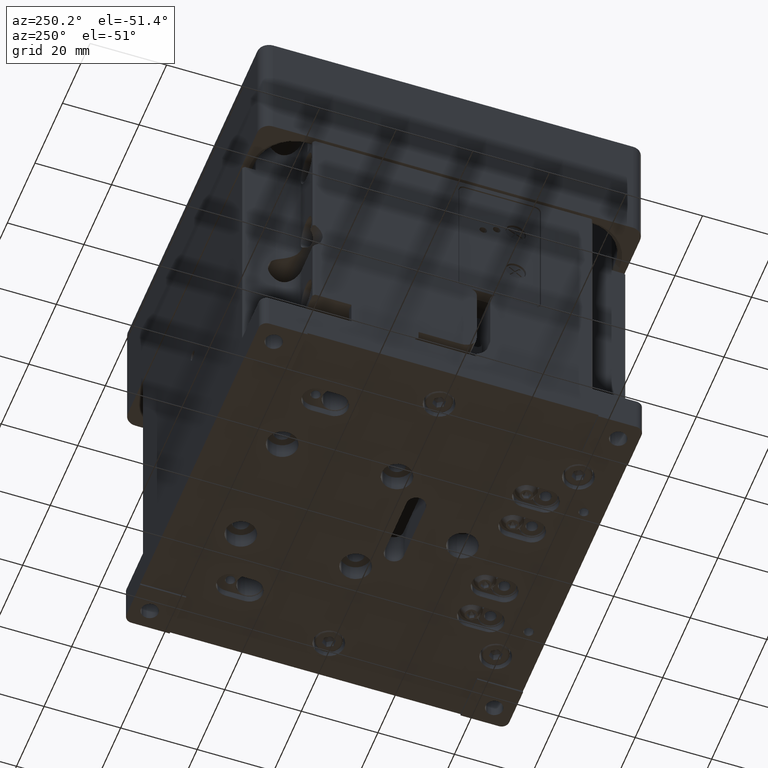
[diagram: clean part render]
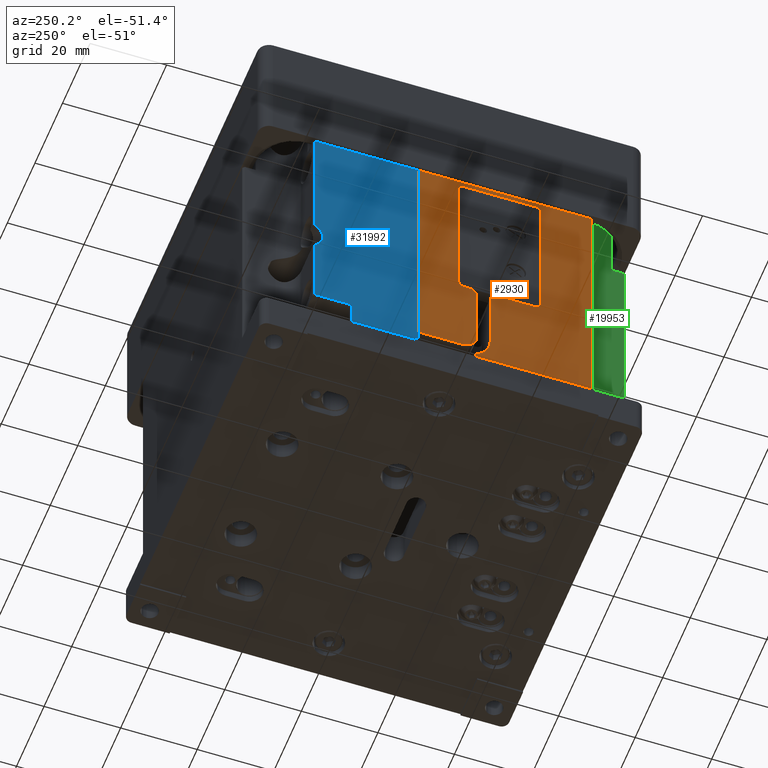
[diagram: same view with three faces highlighted in distinct colors, each labeled with its STEP entity id]
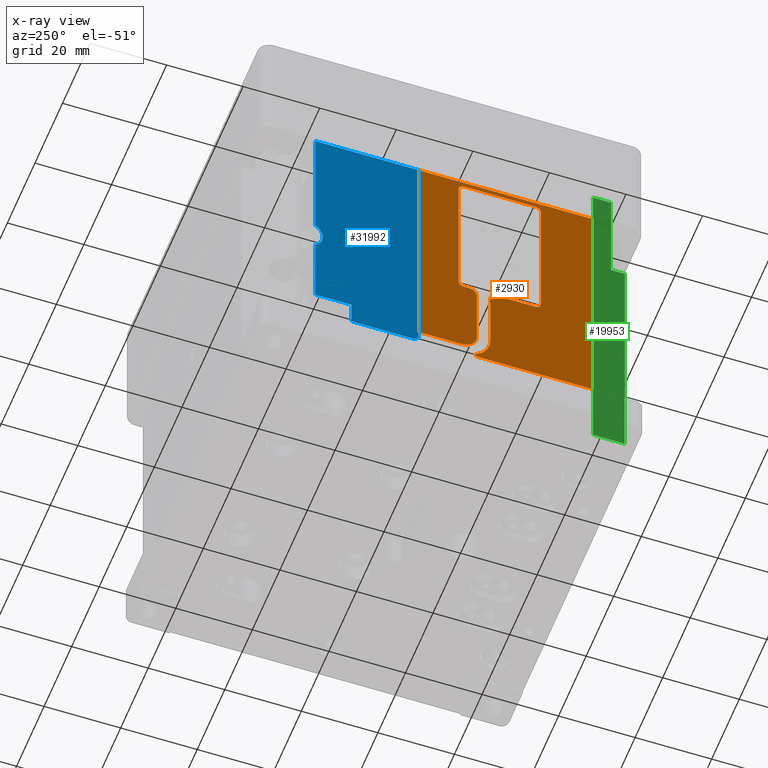
[diagram: x-ray of the same camera — body ghosted, the three highlighted faces saturated]
A machine part, auxiliary view with three faces highlighted in distinct colors.
The next image is the same camera in x-ray (body ghosted, the three faces saturated) — at least one of them is partly hidden behind the body in this view.
Their STEP definitions:

[orange] entity #2930 — the highlighted planar face has unit normal (-1, -0, 0).
#4 = DIRECTION ( 'NONE',  ( -1.000000000000000000, -1.416100796715760863E-16, -0.000000000000000000 ) ) ;
#45 = EDGE_CURVE ( 'NONE', #339, #24981, #39012, .T. ) ;
#223 = PLANE ( 'NONE',  #24922 ) ;
#339 = VERTEX_POINT ( 'NONE', #1372 ) ;
#1049 = CARTESIAN_POINT ( 'NONE',  ( -49.99999999999999289, -21.50000000000000711, 64.04999999999999716 ) ) ;
#1053 = DIRECTION ( 'NONE',  ( 1.387778780781445922E-16, -1.000000000000000000, 0.000000000000000000 ) ) ;
#1372 = CARTESIAN_POINT ( 'NONE',  ( -49.99999999999999289, -1.500000000000004441, 64.04999999999999716 ) ) ;
#1492 = DIRECTION ( 'NONE',  ( -1.387778780781445922E-16, 1.000000000000000000, -0.000000000000000000 ) ) ;
#1855 = EDGE_CURVE ( 'NONE', #21374, #27427, #9730, .T. ) ;
#1878 = AXIS2_PLACEMENT_3D ( 'NONE', #1049, #15969, #20370 ) ;
#2410 = ORIENTED_EDGE ( 'NONE', *, *, #35739, .T. ) ;
#2614 = CARTESIAN_POINT ( 'NONE',  ( -49.99999999999999289, -3.000000000000005329, 26.14999999999999503 ) ) ;
#2930 = ADVANCED_FACE ( 'NONE', ( #44766 ), #223, .T. ) ;
#3459 = DIRECTION ( 'NONE',  ( 0.000000000000000000, 0.000000000000000000, 1.000000000000000000 ) ) ;
#3972 = ORIENTED_EDGE ( 'NONE', *, *, #5535, .T. ) ;
#4757 = CARTESIAN_POINT ( 'NONE',  ( -49.99999999999999289, -3.000000000000005329, 27.64999999999999858 ) ) ;
#4885 = DIRECTION ( 'NONE',  ( -1.000000000000000000, -1.416100796715760863E-16, 0.000000000000000000 ) ) ;
#4907 = CARTESIAN_POINT ( 'NONE',  ( -49.99999999999999289, -11.75000000000000533, 24.14999999999999858 ) ) ;
#5174 = CARTESIAN_POINT ( 'NONE',  ( -50.00000000000000000, 50.00000000000000000, 67.00000000000000000 ) ) ;
#5234 = AXIS2_PLACEMENT_3D ( 'NONE', #28674, #9587, #35788 ) ;
#5535 = EDGE_CURVE ( 'NONE', #11016, #19205, #8828, .T. ) ;
#6062 = VECTOR ( 'NONE', #15440, 1000.000000000000000 ) ;
#7165 = VERTEX_POINT ( 'NONE', #21562 ) ;
#7786 = AXIS2_PLACEMENT_3D ( 'NONE', #34721, #45977, #30557 ) ;
#7936 = VERTEX_POINT ( 'NONE', #39298 ) ;
#8111 = ORIENTED_EDGE ( 'NONE', *, *, #32195, .T. ) ;
#8300 = VECTOR ( 'NONE', #20724, 1000.000000000000000 ) ;
#8828 = LINE ( 'NONE', #5174, #45676 ) ;
#8936 = EDGE_CURVE ( 'NONE', #13107, #7165, #13993, .T. ) ;
#8971 = EDGE_CURVE ( 'NONE', #19721, #339, #35787, .T. ) ;
#9422 = AXIS2_PLACEMENT_3D ( 'NONE', #33537, #4, #30331 ) ;
#9587 = DIRECTION ( 'NONE',  ( 1.000000000000000000, 1.387778780781445922E-16, 0.000000000000000000 ) ) ;
#9710 = DIRECTION ( 'NONE',  ( 0.000000000000000000, -1.000000000000000000, 0.000000000000000000 ) ) ;
#9730 = LINE ( 'NONE', #17820, #14230 ) ;
#10050 = EDGE_CURVE ( 'NONE', #24981, #30730, #19635, .T. ) ;
#10242 = ORIENTED_EDGE ( 'NONE', *, *, #20619, .T. ) ;
#10451 = EDGE_CURVE ( 'NONE', #7165, #21374, #32221, .T. ) ;
#10540 = AXIS2_PLACEMENT_3D ( 'NONE', #17794, #43245, #9710 ) ;
#10936 = EDGE_CURVE ( 'NONE', #27997, #17078, #38497, .T. ) ;
#11005 = DIRECTION ( 'NONE',  ( 0.000000000000000000, 0.000000000000000000, 1.000000000000000000 ) ) ;
#11016 = VERTEX_POINT ( 'NONE', #38858 ) ;
#11274 = LINE ( 'NONE', #41149, #39171 ) ;
#11343 = ORIENTED_EDGE ( 'NONE', *, *, #19523, .T. ) ;
#11415 = CARTESIAN_POINT ( 'NONE',  ( -49.99999999999998579, -36.19999999999999574, -9.500000000000000000 ) ) ;
#11735 = LINE ( 'NONE', #18608, #32021 ) ;
#12422 = DIRECTION ( 'NONE',  ( -1.000000000000000000, -1.416100796715760863E-16, -0.000000000000000000 ) ) ;
#12523 = LINE ( 'NONE', #35293, #38483 ) ;
#12803 = DIRECTION ( 'NONE',  ( 1.000000000000000000, 1.387778780781445676E-16, -0.000000000000000000 ) ) ;
#13065 = CARTESIAN_POINT ( 'NONE',  ( -49.99999999999999289, -9.750000000000007105, 24.14999999999999858 ) ) ;
#13107 = VERTEX_POINT ( 'NONE', #24909 ) ;
#13491 = CARTESIAN_POINT ( 'NONE',  ( -49.99999999999999289, -1.500000000000008216, -9.500000000000000000 ) ) ;
#13795 = VECTOR ( 'NONE', #45623, 1000.000000000000000 ) ;
#13993 = LINE ( 'NONE', #28906, #35271 ) ;
#14024 = EDGE_CURVE ( 'NONE', #19205, #45210, #12523, .T. ) ;
#14072 = VERTEX_POINT ( 'NONE', #18387 ) ;
#14230 = VECTOR ( 'NONE', #28818, 1000.000000000000000 ) ;
#14681 = DIRECTION ( 'NONE',  ( -1.000000000000000000, -1.387778780781445922E-16, 0.000000000000000000 ) ) ;
#15358 = AXIS2_PLACEMENT_3D ( 'NONE', #4757, #12803, #46610 ) ;
#15440 = DIRECTION ( 'NONE',  ( 0.000000000000000000, 1.000000000000000000, 0.000000000000000000 ) ) ;
#15969 = DIRECTION ( 'NONE',  ( 1.000000000000000000, 1.387778780781445922E-16, 0.000000000000000000 ) ) ;
#16185 = ORIENTED_EDGE ( 'NONE', *, *, #45, .T. ) ;
#17078 = VERTEX_POINT ( 'NONE', #22520 ) ;
#17530 = CARTESIAN_POINT ( 'NONE',  ( -49.99999999999999289, -23.00000000000000711, 27.64999999999999503 ) ) ;
#17794 = CARTESIAN_POINT ( 'NONE',  ( -49.99999999999999289, -2.000000000000005329, 7.500000000000000000 ) ) ;
#17820 = CARTESIAN_POINT ( 'NONE',  ( -49.99999999999999289, -9.750000000000008882, -9.500000000000000000 ) ) ;
#18071 = ORIENTED_EDGE ( 'NONE', *, *, #25706, .T. ) ;
#18387 = CARTESIAN_POINT ( 'NONE',  ( -49.99999999999999289, -4.250000000000005329, 26.14999999999999858 ) ) ;
#18608 = CARTESIAN_POINT ( 'NONE',  ( -49.99999999999998579, 0.000000000000000000, 0.000000000000000000 ) ) ;
#19205 = VERTEX_POINT ( 'NONE', #38695 ) ;
#19270 = CIRCLE ( 'NONE', #15358, 1.500000000000000444 ) ;
#19340 = DIRECTION ( 'NONE',  ( -0.000000000000000000, -0.000000000000000000, -1.000000000000000000 ) ) ;
#19523 = EDGE_CURVE ( 'NONE', #44544, #43776, #30499, .T. ) ;
#19635 = LINE ( 'NONE', #27452, #26879 ) ;
#19721 = VERTEX_POINT ( 'NONE', #31292 ) ;
#20065 = CIRCLE ( 'NONE', #5234, 1.500000000000001332 ) ;
#20304 = EDGE_CURVE ( 'NONE', #17078, #7936, #24399, .T. ) ;
#20370 = DIRECTION ( 'NONE',  ( 0.000000000000000000, 1.000000000000000000, 0.000000000000000000 ) ) ;
#20420 = EDGE_CURVE ( 'NONE', #45210, #27997, #26775, .T. ) ;
#20619 = EDGE_CURVE ( 'NONE', #45821, #19721, #19270, .T. ) ;
#20724 = DIRECTION ( 'NONE',  ( 0.000000000000000000, 0.000000000000000000, 1.000000000000000000 ) ) ;
#21374 = VERTEX_POINT ( 'NONE', #13065 ) ;
#21562 = CARTESIAN_POINT ( 'NONE',  ( -49.99999999999999289, -11.75000000000000533, 26.14999999999999503 ) ) ;
#22065 = LINE ( 'NONE', #40892, #6062 ) ;
#22520 = CARTESIAN_POINT ( 'NONE',  ( -49.99999999999999289, -6.250000000000005329, 7.500000000000000000 ) ) ;
#22713 = ORIENTED_EDGE ( 'NONE', *, *, #28458, .T. ) ;
#23257 = CARTESIAN_POINT ( 'NONE',  ( -50.00000000000000000, 9.000000000000035527, 3.250000000000001332 ) ) ;
#24399 = LINE ( 'NONE', #39306, #8300 ) ;
#24425 = EDGE_CURVE ( 'NONE', #30730, #40851, #44086, .T. ) ;
#24582 = CARTESIAN_POINT ( 'NONE',  ( -49.99999999999999289, -21.50000000000000711, 65.54999999999999716 ) ) ;
#24909 = CARTESIAN_POINT ( 'NONE',  ( -49.99999999999999289, -21.50000000000000355, 26.14999999999999147 ) ) ;
#24922 = AXIS2_PLACEMENT_3D ( 'NONE', #29596, #14681, #30544 ) ;
#24981 = VERTEX_POINT ( 'NONE', #42844 ) ;
#25017 = DIRECTION ( 'NONE',  ( -1.387778780781445922E-16, 1.000000000000000000, -0.000000000000000000 ) ) ;
#25706 = EDGE_CURVE ( 'NONE', #7936, #14072, #38287, .T. ) ;
#26775 = LINE ( 'NONE', #37562, #13795 ) ;
#26879 = VECTOR ( 'NONE', #1053, 1000.000000000000000 ) ;
#26890 = DIRECTION ( 'NONE',  ( 0.000000000000000000, -1.000000000000000000, 0.000000000000000000 ) ) ;
#26918 = DIRECTION ( 'NONE',  ( 0.000000000000000000, 1.000000000000000000, 0.000000000000000000 ) ) ;
#27122 = ORIENTED_EDGE ( 'NONE', *, *, #10451, .T. ) ;
#27316 = ORIENTED_EDGE ( 'NONE', *, *, #42020, .T. ) ;
#27349 = ORIENTED_EDGE ( 'NONE', *, *, #45208, .F. ) ;
#27427 = VERTEX_POINT ( 'NONE', #41081 ) ;
#27447 = DIRECTION ( 'NONE',  ( -0.000000000000000000, -0.000000000000000000, -1.000000000000000000 ) ) ;
#27452 = CARTESIAN_POINT ( 'NONE',  ( -50.00000000000000000, 50.00000000000000000, 65.54999999999999716 ) ) ;
#27997 = VERTEX_POINT ( 'NONE', #39758 ) ;
#28293 = ORIENTED_EDGE ( 'NONE', *, *, #20420, .T. ) ;
#28458 = EDGE_CURVE ( 'NONE', #14072, #45821, #22065, .T. ) ;
#28674 = CARTESIAN_POINT ( 'NONE',  ( -49.99999999999999289, -21.50000000000000000, 27.64999999999999858 ) ) ;
#28818 = DIRECTION ( 'NONE',  ( -0.000000000000000000, -0.000000000000000000, -1.000000000000000000 ) ) ;
#28894 = ORIENTED_EDGE ( 'NONE', *, *, #46840, .T. ) ;
#28906 = CARTESIAN_POINT ( 'NONE',  ( -50.00000000000000000, 50.00000000000000000, 26.14999999999999147 ) ) ;
#29002 = VERTEX_POINT ( 'NONE', #17530 ) ;
#29596 = CARTESIAN_POINT ( 'NONE',  ( -50.00000000000000000, 50.00000000000000000, -9.500000000000000000 ) ) ;
#29788 = VECTOR ( 'NONE', #3459, 1000.000000000000000 ) ;
#30070 = LINE ( 'NONE', #11415, #38111 ) ;
#30094 = CARTESIAN_POINT ( 'NONE',  ( -49.99999999999999289, -4.250000000000004441, 24.14999999999999858 ) ) ;
#30331 = DIRECTION ( 'NONE',  ( 0.000000000000000000, -1.000000000000000000, 0.000000000000000000 ) ) ;
#30499 = CIRCLE ( 'NONE', #9422, 0.4999999999999995559 ) ;
#30544 = DIRECTION ( 'NONE',  ( 1.387778780781445922E-16, -1.000000000000000000, 0.000000000000000000 ) ) ;
#30557 = DIRECTION ( 'NONE',  ( 0.000000000000000000, -1.000000000000000000, 0.000000000000000000 ) ) ;
#30637 = AXIS2_PLACEMENT_3D ( 'NONE', #4907, #46006, #26918 ) ;
#30730 = VERTEX_POINT ( 'NONE', #24582 ) ;
#31292 = CARTESIAN_POINT ( 'NONE',  ( -49.99999999999999289, -1.500000000000006439, 27.64999999999999503 ) ) ;
#32021 = VECTOR ( 'NONE', #41845, 1000.000000000000000 ) ;
#32195 = EDGE_CURVE ( 'NONE', #27427, #44544, #37126, .T. ) ;
#32221 = CIRCLE ( 'NONE', #30637, 2.000000000000000000 ) ;
#33042 = CARTESIAN_POINT ( 'NONE',  ( -49.99999999999998579, -36.20000000000000284, 0.000000000000000000 ) ) ;
#33537 = CARTESIAN_POINT ( 'NONE',  ( -49.99999999999998579, -6.366062299143253611, 0.5000000000000004441 ) ) ;
#33968 = ORIENTED_EDGE ( 'NONE', *, *, #24425, .T. ) ;
#34233 = DIRECTION ( 'NONE',  ( 0.000000000000000000, -1.000000000000000000, 0.000000000000000000 ) ) ;
#34721 = CARTESIAN_POINT ( 'NONE',  ( -49.99999999999999289, -3.000000000000000444, 64.04999999999999716 ) ) ;
#35271 = VECTOR ( 'NONE', #25017, 1000.000000000000000 ) ;
#35293 = CARTESIAN_POINT ( 'NONE',  ( -50.00000000000000000, 9.000000000000051514, 93.50000000000000000 ) ) ;
#35739 = EDGE_CURVE ( 'NONE', #29002, #13107, #20065, .T. ) ;
#35787 = LINE ( 'NONE', #13491, #29788 ) ;
#35788 = DIRECTION ( 'NONE',  ( 0.000000000000000000, 1.000000000000000000, 0.000000000000000000 ) ) ;
#36036 = ORIENTED_EDGE ( 'NONE', *, *, #8971, .T. ) ;
#36111 = ORIENTED_EDGE ( 'NONE', *, *, #14024, .T. ) ;
#36164 = AXIS2_PLACEMENT_3D ( 'NONE', #45959, #12422, #34233 ) ;
#36716 = CARTESIAN_POINT ( 'NONE',  ( -49.99999999999998579, -6.366062299143252723, 0.000000000000000000 ) ) ;
#37126 = CIRCLE ( 'NONE', #10540, 7.750000000000000000 ) ;
#37562 = CARTESIAN_POINT ( 'NONE',  ( -50.00000000000000000, -6.353699843987567148E-15, 3.249999999999999556 ) ) ;
#38111 = VECTOR ( 'NONE', #11005, 1000.000000000000000 ) ;
#38287 = CIRCLE ( 'NONE', #42222, 2.000000000000000000 ) ;
#38483 = VECTOR ( 'NONE', #27447, 1000.000000000000000 ) ;
#38497 = CIRCLE ( 'NONE', #36164, 4.250000000000000000 ) ;
#38695 = CARTESIAN_POINT ( 'NONE',  ( -50.00000000000000000, 9.000000000000017764, 67.00000000000000000 ) ) ;
#38858 = CARTESIAN_POINT ( 'NONE',  ( -49.99999999999998579, -36.19999999999999574, 67.00000000000000000 ) ) ;
#39012 = CIRCLE ( 'NONE', #7786, 1.500000000000000000 ) ;
#39171 = VECTOR ( 'NONE', #19340, 1000.000000000000000 ) ;
#39298 = CARTESIAN_POINT ( 'NONE',  ( -49.99999999999999289, -6.250000000000005329, 24.14999999999999858 ) ) ;
#39306 = CARTESIAN_POINT ( 'NONE',  ( -49.99999999999999289, -6.250000000000005329, -9.500000000000000000 ) ) ;
#39758 = CARTESIAN_POINT ( 'NONE',  ( -50.00000000000000000, -2.000000000000006217, 3.249999999999999556 ) ) ;
#40851 = VERTEX_POINT ( 'NONE', #46562 ) ;
#40892 = CARTESIAN_POINT ( 'NONE',  ( -49.99999999999999289, -1.499999999999997113, 26.14999999999999503 ) ) ;
#41081 = CARTESIAN_POINT ( 'NONE',  ( -49.99999999999999289, -9.750000000000008882, 7.500000000000000888 ) ) ;
#41149 = CARTESIAN_POINT ( 'NONE',  ( -49.99999999999999289, -23.00000000000000711, -9.500000000000000000 ) ) ;
#41845 = DIRECTION ( 'NONE',  ( 0.000000000000000000, 1.000000000000000000, 0.000000000000000000 ) ) ;
#41887 = EDGE_LOOP ( 'NONE', ( #22713, #10242, #36036, #16185, #45429, #33968, #28894, #2410, #48236, #27122, #47918, #8111, #11343, #27349, #27316, #3972, #36111, #28293, #47185, #47195, #18071 ) ) ;
#42020 = EDGE_CURVE ( 'NONE', #42038, #11016, #30070, .T. ) ;
#42038 = VERTEX_POINT ( 'NONE', #33042 ) ;
#42222 = AXIS2_PLACEMENT_3D ( 'NONE', #30094, #4885, #26890 ) ;
#42439 = CARTESIAN_POINT ( 'NONE',  ( -49.99999999999998579, -6.101452462831542078, 0.9242424242424239766 ) ) ;
#42844 = CARTESIAN_POINT ( 'NONE',  ( -49.99999999999999289, -3.000000000000000000, 65.54999999999999716 ) ) ;
#43245 = DIRECTION ( 'NONE',  ( 1.000000000000000000, 1.416100796715760863E-16, 0.000000000000000000 ) ) ;
#43776 = VERTEX_POINT ( 'NONE', #36716 ) ;
#44086 = CIRCLE ( 'NONE', #1878, 1.500000000000001332 ) ;
#44544 = VERTEX_POINT ( 'NONE', #42439 ) ;
#44766 = FACE_OUTER_BOUND ( 'NONE', #41887, .T. ) ;
#45208 = EDGE_CURVE ( 'NONE', #42038, #43776, #11735, .T. ) ;
#45210 = VERTEX_POINT ( 'NONE', #23257 ) ;
#45429 = ORIENTED_EDGE ( 'NONE', *, *, #10050, .T. ) ;
#45623 = DIRECTION ( 'NONE',  ( 0.000000000000000000, -1.000000000000000000, -3.942553354492743901E-17 ) ) ;
#45676 = VECTOR ( 'NONE', #1492, 1000.000000000000000 ) ;
#45821 = VERTEX_POINT ( 'NONE', #2614 ) ;
#45959 = CARTESIAN_POINT ( 'NONE',  ( -49.99999999999999289, -2.000000000000006217, 7.500000000000000000 ) ) ;
#45977 = DIRECTION ( 'NONE',  ( 1.000000000000000000, 1.387778780781445676E-16, -0.000000000000000000 ) ) ;
#46006 = DIRECTION ( 'NONE',  ( -1.000000000000000000, -1.416100796715760863E-16, -0.000000000000000000 ) ) ;
#46562 = CARTESIAN_POINT ( 'NONE',  ( -49.99999999999999289, -23.00000000000000355, 64.04999999999999716 ) ) ;
#46610 = DIRECTION ( 'NONE',  ( 0.000000000000000000, -1.000000000000000000, 0.000000000000000000 ) ) ;
#46840 = EDGE_CURVE ( 'NONE', #40851, #29002, #11274, .T. ) ;
#47185 = ORIENTED_EDGE ( 'NONE', *, *, #10936, .T. ) ;
#47195 = ORIENTED_EDGE ( 'NONE', *, *, #20304, .T. ) ;
#47918 = ORIENTED_EDGE ( 'NONE', *, *, #1855, .T. ) ;
#48236 = ORIENTED_EDGE ( 'NONE', *, *, #8936, .T. ) ;

[blue] entity #31992 — the highlighted planar face has unit normal (1, 0, 0).
#67 = ORIENTED_EDGE ( 'NONE', *, *, #7528, .F. ) ;
#1150 = CARTESIAN_POINT ( 'NONE',  ( -50.00000000000000000, 8.999999999999980460, 1.000000000000000888 ) ) ;
#2186 = CARTESIAN_POINT ( 'NONE',  ( -50.00000000000000711, 36.00000000000002842, 6.499999999999976907 ) ) ;
#2405 = LINE ( 'NONE', #20516, #9488 ) ;
#2622 = ORIENTED_EDGE ( 'NONE', *, *, #31998, .F. ) ;
#2938 = VERTEX_POINT ( 'NONE', #33747 ) ;
#3196 = ORIENTED_EDGE ( 'NONE', *, *, #28544, .T. ) ;
#3398 = LINE ( 'NONE', #44990, #30715 ) ;
#4355 = FACE_OUTER_BOUND ( 'NONE', #29313, .T. ) ;
#4664 = CARTESIAN_POINT ( 'NONE',  ( -50.00000000000000000, 8.999999999999978684, 137.9435699807652043 ) ) ;
#4815 = CARTESIAN_POINT ( 'NONE',  ( -50.00000000000000000, 26.50000000000000355, 0.000000000000000000 ) ) ;
#4900 = LINE ( 'NONE', #19812, #25117 ) ;
#7235 = VERTEX_POINT ( 'NONE', #22989 ) ;
#7528 = EDGE_CURVE ( 'NONE', #11606, #2938, #2405, .T. ) ;
#7944 = EDGE_CURVE ( 'NONE', #38551, #44821, #21438, .T. ) ;
#8335 = LINE ( 'NONE', #4664, #46682 ) ;
#8505 = DIRECTION ( 'NONE',  ( 0.000000000000000000, 0.7071067811865469066, -0.7071067811865482389 ) ) ;
#9377 = VERTEX_POINT ( 'NONE', #36451 ) ;
#9488 = VECTOR ( 'NONE', #17329, 1000.000000000000000 ) ;
#10736 = VECTOR ( 'NONE', #12241, 1000.000000000000000 ) ;
#11256 = EDGE_CURVE ( 'NONE', #44821, #11606, #29177, .T. ) ;
#11556 = VECTOR ( 'NONE', #8505, 999.9999999999998863 ) ;
#11606 = VERTEX_POINT ( 'NONE', #46640 ) ;
#12241 = DIRECTION ( 'NONE',  ( -0.000000000000000000, -1.000000000000000000, 0.000000000000000000 ) ) ;
#12882 = LINE ( 'NONE', #1150, #11556 ) ;
#12961 = DIRECTION ( 'NONE',  ( -0.000000000000000000, 1.000000000000000000, 0.000000000000000000 ) ) ;
#13854 = DIRECTION ( 'NONE',  ( -0.000000000000000000, -0.000000000000000000, 1.000000000000000000 ) ) ;
#13959 = ORIENTED_EDGE ( 'NONE', *, *, #11256, .F. ) ;
#16385 = DIRECTION ( 'NONE',  ( 0.000000000000000000, 0.000000000000000000, 1.000000000000000000 ) ) ;
#17116 = CARTESIAN_POINT ( 'NONE',  ( -50.00000000000000000, 8.999999999999984013, 0.9999999999999850120 ) ) ;
#17329 = DIRECTION ( 'NONE',  ( -0.000000000000000000, -0.000000000000000000, 1.000000000000000000 ) ) ;
#19279 = DIRECTION ( 'NONE',  ( 0.000000000000000000, 0.000000000000000000, -1.000000000000000000 ) ) ;
#19812 = CARTESIAN_POINT ( 'NONE',  ( -50.00000000000000000, 8.999999999999978684, 0.000000000000000000 ) ) ;
#19813 = LINE ( 'NONE', #46494, #10736 ) ;
#20516 = CARTESIAN_POINT ( 'NONE',  ( -50.00000000000000000, 36.00000000000002132, 137.9435699807652043 ) ) ;
#21438 = LINE ( 'NONE', #39554, #28278 ) ;
#21765 = DIRECTION ( 'NONE',  ( 0.000000000000000000, 1.000000000000000000, 0.000000000000000000 ) ) ;
#22201 = DIRECTION ( 'NONE',  ( -1.000000000000000000, -0.000000000000000000, -0.000000000000000000 ) ) ;
#22456 = DIRECTION ( 'NONE',  ( 0.000000000000000000, 0.000000000000000000, 1.000000000000000000 ) ) ;
#22696 = ORIENTED_EDGE ( 'NONE', *, *, #7944, .F. ) ;
#22989 = CARTESIAN_POINT ( 'NONE',  ( -50.00000000000000000, 9.999999999999980460, -6.505213034913026604E-16 ) ) ;
#23955 = EDGE_CURVE ( 'NONE', #9377, #38551, #3398, .T. ) ;
#24905 = EDGE_CURVE ( 'NONE', #7235, #43953, #4900, .T. ) ;
#25117 = VECTOR ( 'NONE', #12961, 1000.000000000000000 ) ;
#25776 = VERTEX_POINT ( 'NONE', #45505 ) ;
#27094 = DIRECTION ( 'NONE',  ( 1.000000000000000000, 0.000000000000000000, 0.000000000000000000 ) ) ;
#28278 = VECTOR ( 'NONE', #13854, 1000.000000000000000 ) ;
#28544 = EDGE_CURVE ( 'NONE', #34810, #25776, #8335, .T. ) ;
#28589 = ORIENTED_EDGE ( 'NONE', *, *, #24905, .F. ) ;
#28598 = EDGE_CURVE ( 'NONE', #2938, #25776, #19813, .T. ) ;
#29177 = CIRCLE ( 'NONE', #38534, 4.749999999999990230 ) ;
#29313 = EDGE_LOOP ( 'NONE', ( #42553, #28589, #2622, #3196, #38447, #67, #13959, #22696, #39219 ) ) ;
#29509 = AXIS2_PLACEMENT_3D ( 'NONE', #42774, #27094, #19279 ) ;
#30715 = VECTOR ( 'NONE', #21765, 1000.000000000000000 ) ;
#31992 = ADVANCED_FACE ( 'NONE', ( #4355 ), #34215, .F. ) ;
#31998 = EDGE_CURVE ( 'NONE', #34810, #7235, #12882, .T. ) ;
#33747 = CARTESIAN_POINT ( 'NONE',  ( -50.00000000000000711, 36.00000000000002132, 66.99999999999998579 ) ) ;
#34215 = PLANE ( 'NONE',  #29509 ) ;
#34315 = CARTESIAN_POINT ( 'NONE',  ( -50.00000000000000000, 36.00000000000002842, 26.12701665379258742 ) ) ;
#34810 = VERTEX_POINT ( 'NONE', #17116 ) ;
#35602 = CARTESIAN_POINT ( 'NONE',  ( -50.00000000000000000, 26.50000000000000355, 137.9435699807652043 ) ) ;
#36451 = CARTESIAN_POINT ( 'NONE',  ( -50.00000000000000711, 26.50000000000000711, 6.500000000000002665 ) ) ;
#38447 = ORIENTED_EDGE ( 'NONE', *, *, #28598, .F. ) ;
#38534 = AXIS2_PLACEMENT_3D ( 'NONE', #44707, #22201, #22456 ) ;
#38551 = VERTEX_POINT ( 'NONE', #2186 ) ;
#39219 = ORIENTED_EDGE ( 'NONE', *, *, #23955, .F. ) ;
#39554 = CARTESIAN_POINT ( 'NONE',  ( -50.00000000000000000, 36.00000000000002842, 137.9435699807652043 ) ) ;
#40447 = EDGE_CURVE ( 'NONE', #43953, #9377, #46361, .T. ) ;
#41902 = VECTOR ( 'NONE', #42959, 1000.000000000000000 ) ;
#42553 = ORIENTED_EDGE ( 'NONE', *, *, #40447, .F. ) ;
#42774 = CARTESIAN_POINT ( 'NONE',  ( -50.00000000000000000, 8.999999999999978684, 137.9435699807652043 ) ) ;
#42959 = DIRECTION ( 'NONE',  ( -0.000000000000000000, -0.000000000000000000, 1.000000000000000000 ) ) ;
#43953 = VERTEX_POINT ( 'NONE', #4815 ) ;
#44707 = CARTESIAN_POINT ( 'NONE',  ( -50.00000000000000000, 38.75000000000000711, 29.99999999999999289 ) ) ;
#44821 = VERTEX_POINT ( 'NONE', #34315 ) ;
#44990 = CARTESIAN_POINT ( 'NONE',  ( -50.00000000000000711, 0.000000000000000000, 6.500000000000002665 ) ) ;
#45505 = CARTESIAN_POINT ( 'NONE',  ( -50.00000000000000000, 8.999999999999980460, 67.00000000000000000 ) ) ;
#46361 = LINE ( 'NONE', #35602, #41902 ) ;
#46494 = CARTESIAN_POINT ( 'NONE',  ( -50.00000000000000711, 0.000000000000000000, 67.00000000000000000 ) ) ;
#46640 = CARTESIAN_POINT ( 'NONE',  ( -50.00000000000000000, 36.00000000000002132, 33.87298334620742679 ) ) ;
#46682 = VECTOR ( 'NONE', #16385, 1000.000000000000000 ) ;

[green] entity #19953 — the highlighted planar face has unit normal (1, 0, 0).
#1054 = CARTESIAN_POINT ( 'NONE',  ( -36.50000000000000000, -49.69999999999998863, 1.734723475976807094E-15 ) ) ;
#2038 = EDGE_LOOP ( 'NONE', ( #39949, #14310, #33756, #33553, #6535, #26253 ) ) ;
#2607 = VECTOR ( 'NONE', #33100, 1000.000000000000000 ) ;
#3639 = DIRECTION ( 'NONE',  ( -0.000000000000000000, 0.000000000000000000, -1.000000000000000000 ) ) ;
#6490 = VECTOR ( 'NONE', #28849, 1000.000000000000000 ) ;
#6535 = ORIENTED_EDGE ( 'NONE', *, *, #23705, .F. ) ;
#7059 = PLANE ( 'NONE',  #8266 ) ;
#7337 = DIRECTION ( 'NONE',  ( 0.000000000000000000, 1.000000000000000000, 0.000000000000000000 ) ) ;
#8266 = AXIS2_PLACEMENT_3D ( 'NONE', #18304, #18548, #33248 ) ;
#10051 = VERTEX_POINT ( 'NONE', #12529 ) ;
#10365 = VERTEX_POINT ( 'NONE', #11289 ) ;
#11289 = CARTESIAN_POINT ( 'NONE',  ( -36.50000000000000000, -46.19999999999998153, 67.00000000000000000 ) ) ;
#11600 = EDGE_CURVE ( 'NONE', #19583, #10051, #28251, .T. ) ;
#12529 = CARTESIAN_POINT ( 'NONE',  ( -36.50000000000000000, -41.50000000000000000, 93.50000000000000000 ) ) ;
#14310 = ORIENTED_EDGE ( 'NONE', *, *, #17067, .F. ) ;
#15105 = CARTESIAN_POINT ( 'NONE',  ( -36.50000000000000000, -49.69999999999998863, 93.50000000000000000 ) ) ;
#15145 = VERTEX_POINT ( 'NONE', #1054 ) ;
#15498 = DIRECTION ( 'NONE',  ( 0.000000000000000000, -1.000000000000000000, -0.000000000000000000 ) ) ;
#16127 = VERTEX_POINT ( 'NONE', #45960 ) ;
#17067 = EDGE_CURVE ( 'NONE', #15145, #19583, #41821, .T. ) ;
#17584 = FACE_OUTER_BOUND ( 'NONE', #2038, .T. ) ;
#17886 = LINE ( 'NONE', #39412, #34056 ) ;
#18304 = CARTESIAN_POINT ( 'NONE',  ( -36.50000000000000000, -36.50000000000000711, 93.50000000000000000 ) ) ;
#18548 = DIRECTION ( 'NONE',  ( 1.000000000000000000, 0.000000000000000000, -0.000000000000000000 ) ) ;
#19567 = VECTOR ( 'NONE', #7337, 1000.000000000000000 ) ;
#19583 = VERTEX_POINT ( 'NONE', #38158 ) ;
#19953 = ADVANCED_FACE ( 'NONE', ( #17584 ), #7059, .F. ) ;
#20540 = CARTESIAN_POINT ( 'NONE',  ( -36.50000000000000000, -46.19999999999998153, 93.50000000000000000 ) ) ;
#20802 = LINE ( 'NONE', #20540, #6490 ) ;
#20850 = DIRECTION ( 'NONE',  ( -0.000000000000000000, -1.000000000000000000, -0.000000000000000000 ) ) ;
#22126 = CARTESIAN_POINT ( 'NONE',  ( -36.50000000000000000, 0.000000000000000000, 93.50000000000000000 ) ) ;
#23705 = EDGE_CURVE ( 'NONE', #16127, #10365, #20802, .T. ) ;
#26027 = LINE ( 'NONE', #22126, #31795 ) ;
#26253 = ORIENTED_EDGE ( 'NONE', *, *, #28150, .F. ) ;
#27773 = CARTESIAN_POINT ( 'NONE',  ( -36.50000000000000000, -41.50000000000000000, 93.50000000000000000 ) ) ;
#28150 = EDGE_CURVE ( 'NONE', #10051, #16127, #26027, .T. ) ;
#28251 = LINE ( 'NONE', #27773, #2607 ) ;
#28849 = DIRECTION ( 'NONE',  ( -0.000000000000000000, 0.000000000000000000, -1.000000000000000000 ) ) ;
#29923 = EDGE_CURVE ( 'NONE', #10365, #43396, #17886, .T. ) ;
#31795 = VECTOR ( 'NONE', #15498, 1000.000000000000000 ) ;
#33100 = DIRECTION ( 'NONE',  ( 0.000000000000000000, -0.000000000000000000, 1.000000000000000000 ) ) ;
#33248 = DIRECTION ( 'NONE',  ( -0.000000000000000000, 0.000000000000000000, -1.000000000000000000 ) ) ;
#33553 = ORIENTED_EDGE ( 'NONE', *, *, #29923, .F. ) ;
#33756 = ORIENTED_EDGE ( 'NONE', *, *, #38622, .F. ) ;
#33987 = CARTESIAN_POINT ( 'NONE',  ( -36.50000000000000000, 0.000000000000000000, 0.000000000000000000 ) ) ;
#34056 = VECTOR ( 'NONE', #20850, 1000.000000000000000 ) ;
#36295 = CARTESIAN_POINT ( 'NONE',  ( -36.50000000000000000, -49.69999999999998863, 67.00000000000001421 ) ) ;
#38158 = CARTESIAN_POINT ( 'NONE',  ( -36.50000000000000000, -41.50000000000000000, 0.000000000000000000 ) ) ;
#38622 = EDGE_CURVE ( 'NONE', #43396, #15145, #41311, .T. ) ;
#39412 = CARTESIAN_POINT ( 'NONE',  ( -36.50000000000000000, -36.50000000000000711, 67.00000000000000000 ) ) ;
#39949 = ORIENTED_EDGE ( 'NONE', *, *, #11600, .F. ) ;
#41311 = LINE ( 'NONE', #15105, #47943 ) ;
#41821 = LINE ( 'NONE', #33987, #19567 ) ;
#43396 = VERTEX_POINT ( 'NONE', #36295 ) ;
#45960 = CARTESIAN_POINT ( 'NONE',  ( -36.50000000000000000, -46.19999999999998153, 93.49999999999998579 ) ) ;
#47943 = VECTOR ( 'NONE', #3639, 1000.000000000000000 ) ;